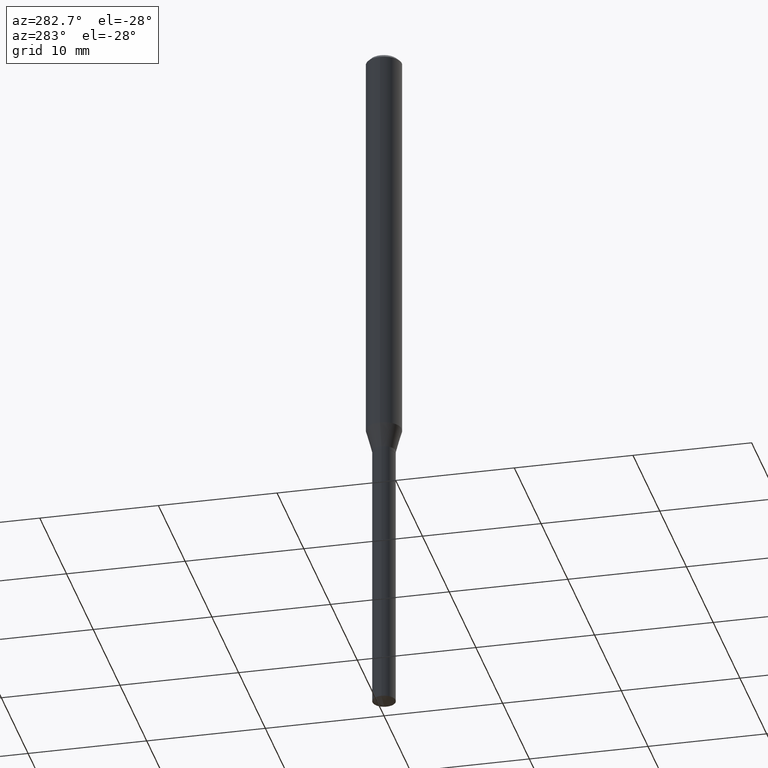
[diagram: clean part render]
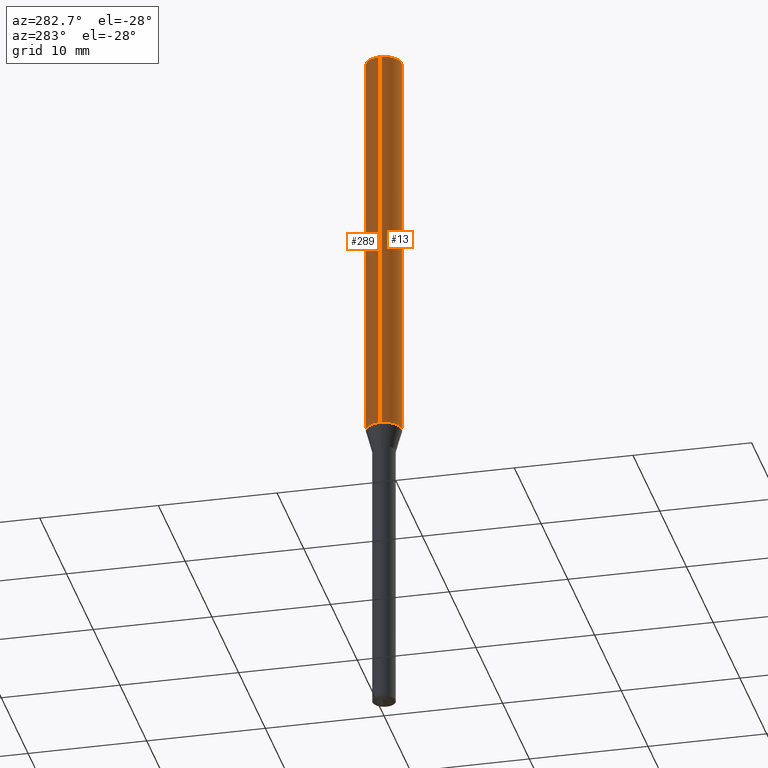
[diagram: same view with one multi-face feature highlighted, each face labeled with its STEP entity id]
A machine part, auxiliary view. The highlighted faces form ONE feature: a constant-radius fillet chain: 2 tangent blend faces with common blend radius 1.4999 mm. The faces share edges in the B-rep.
Their STEP definitions:
[1] entity #13 (Cylinder):
#10 = DIRECTION ( 'NONE',  ( -2.445468806185136877E-29, 3.491481338843145188E-15, 1.000000000000000000 ) ) ;
#13 = ADVANCED_FACE ( 'NONE', ( #306 ), #106, .T. ) ;
#17 = CARTESIAN_POINT ( 'NONE',  ( 0.05905000000000008159, -4.123439461173746736E-16, 2.879382386107504424E-30 ) ) ;
#19 = DIRECTION ( 'NONE',  ( 1.000000000000000000, -6.982962677686266711E-15, 0.000000000000000000 ) ) ;
#36 = VERTEX_POINT ( 'NONE', #38 ) ;
#38 = CARTESIAN_POINT ( 'NONE',  ( 0.05905000000000017180, -5.133291609849517626E-15, -1.352133150823702445 ) ) ;
#42 = AXIS2_PLACEMENT_3D ( 'NONE', #245, #407, #19 ) ;
#64 = VERTEX_POINT ( 'NONE', #430 ) ;
#78 = LINE ( 'NONE', #349, #490 ) ;
#90 = EDGE_CURVE ( 'NONE', #447, #187, #78, .T. ) ;
#106 = CYLINDRICAL_SURFACE ( 'NONE', #218, 0.05905000000000008159 ) ;
#111 = DIRECTION ( 'NONE',  ( -2.445468806185136877E-29, 3.491481338843145188E-15, 1.000000000000000000 ) ) ;
#187 = VERTEX_POINT ( 'NONE', #271 ) ;
#205 = CARTESIAN_POINT ( 'NONE',  ( -0.05905000000000017180, -4.301372178265801635E-15, -1.352133150823702445 ) ) ;
#211 = AXIS2_PLACEMENT_3D ( 'NONE', #301, #366, #226 ) ;
#215 = EDGE_CURVE ( 'NONE', #36, #64, #359, .T. ) ;
#218 = AXIS2_PLACEMENT_3D ( 'NONE', #228, #230, #465 ) ;
#226 = DIRECTION ( 'NONE',  ( 1.000000000000000000, -6.982962677686270655E-15, 0.000000000000000000 ) ) ;
#228 = CARTESIAN_POINT ( 'NONE',  ( 0.000000000000000000, 0.000000000000000000, 0.000000000000000000 ) ) ;
#230 = DIRECTION ( 'NONE',  ( -2.445468806185136597E-29, 3.491481338843145583E-15, 1.000000000000000000 ) ) ;
#235 = EDGE_LOOP ( 'NONE', ( #428, #453, #423, #420 ) ) ;
#245 = CARTESIAN_POINT ( 'NONE',  ( 2.888098660104663766E-31, -4.123439461173779647E-17, -0.01181000000000007044 ) ) ;
#255 = CIRCLE ( 'NONE', #42, 0.05904999999999999832 ) ;
#271 = CARTESIAN_POINT ( 'NONE',  ( -0.05904999999999999832, -1.961515543705598752E-15, -0.01181000000000007044 ) ) ;
#296 = EDGE_CURVE ( 'NONE', #447, #36, #459, .T. ) ;
#301 = CARTESIAN_POINT ( 'NONE',  ( 3.306599442148187304E-29, -4.720947663732141917E-15, -1.352133150823702445 ) ) ;
#306 = FACE_OUTER_BOUND ( 'NONE', #235, .T. ) ;
#349 = CARTESIAN_POINT ( 'NONE',  ( -0.05905000000000008159, 4.195754854663397395E-16, -2.904631170795525745E-30 ) ) ;
#359 = LINE ( 'NONE', #17, #472 ) ;
#366 = DIRECTION ( 'NONE',  ( -2.445468806185136597E-29, 3.491481338843145583E-15, 1.000000000000000000 ) ) ;
#407 = DIRECTION ( 'NONE',  ( -2.445468806185136597E-29, 3.491481338843145583E-15, 1.000000000000000000 ) ) ;
#420 = ORIENTED_EDGE ( 'NONE', *, *, #427, .F. ) ;
#423 = ORIENTED_EDGE ( 'NONE', *, *, #215, .T. ) ;
#427 = EDGE_CURVE ( 'NONE', #187, #64, #255, .T. ) ;
#428 = ORIENTED_EDGE ( 'NONE', *, *, #90, .F. ) ;
#430 = CARTESIAN_POINT ( 'NONE',  ( 0.05904999999999999832, -4.535783407291118600E-16, -0.01181000000000007044 ) ) ;
#447 = VERTEX_POINT ( 'NONE', #205 ) ;
#453 = ORIENTED_EDGE ( 'NONE', *, *, #296, .T. ) ;
#459 = CIRCLE ( 'NONE', #211, 0.05905000000000015792 ) ;
#465 = DIRECTION ( 'NONE',  ( 1.000000000000000000, -6.982962677686267499E-15, 4.876176775795936353E-29 ) ) ;
#472 = VECTOR ( 'NONE', #10, 39.37007874015748143 ) ;
#490 = VECTOR ( 'NONE', #111, 39.37007874015748143 ) ;
[2] entity #289 (Cylinder):
#10 = DIRECTION ( 'NONE',  ( -2.445468806185136877E-29, 3.491481338843145188E-15, 1.000000000000000000 ) ) ;
#17 = CARTESIAN_POINT ( 'NONE',  ( 0.05905000000000008159, -4.123439461173746736E-16, 2.879382386107504424E-30 ) ) ;
#26 = CYLINDRICAL_SURFACE ( 'NONE', #262, 0.05905000000000008159 ) ;
#36 = VERTEX_POINT ( 'NONE', #38 ) ;
#38 = CARTESIAN_POINT ( 'NONE',  ( 0.05905000000000017180, -5.133291609849517626E-15, -1.352133150823702445 ) ) ;
#64 = VERTEX_POINT ( 'NONE', #430 ) ;
#65 = AXIS2_PLACEMENT_3D ( 'NONE', #137, #450, #256 ) ;
#74 = CIRCLE ( 'NONE', #65, 0.05904999999999999832 ) ;
#78 = LINE ( 'NONE', #349, #490 ) ;
#90 = EDGE_CURVE ( 'NONE', #447, #187, #78, .T. ) ;
#92 = DIRECTION ( 'NONE',  ( 1.000000000000000000, -6.982962677686270655E-15, 0.000000000000000000 ) ) ;
#111 = DIRECTION ( 'NONE',  ( -2.445468806185136877E-29, 3.491481338843145188E-15, 1.000000000000000000 ) ) ;
#136 = ORIENTED_EDGE ( 'NONE', *, *, #373, .F. ) ;
#137 = CARTESIAN_POINT ( 'NONE',  ( 2.888098660104663766E-31, -4.123439461173779647E-17, -0.01181000000000007044 ) ) ;
#138 = ORIENTED_EDGE ( 'NONE', *, *, #90, .T. ) ;
#187 = VERTEX_POINT ( 'NONE', #271 ) ;
#195 = CIRCLE ( 'NONE', #286, 0.05905000000000015792 ) ;
#205 = CARTESIAN_POINT ( 'NONE',  ( -0.05905000000000017180, -4.301372178265801635E-15, -1.352133150823702445 ) ) ;
#215 = EDGE_CURVE ( 'NONE', #36, #64, #359, .T. ) ;
#222 = FACE_OUTER_BOUND ( 'NONE', #302, .T. ) ;
#250 = CARTESIAN_POINT ( 'NONE',  ( 3.306599442148187304E-29, -4.720947663732141917E-15, -1.352133150823702445 ) ) ;
#256 = DIRECTION ( 'NONE',  ( 1.000000000000000000, -6.982962677686266711E-15, 0.000000000000000000 ) ) ;
#261 = ORIENTED_EDGE ( 'NONE', *, *, #215, .F. ) ;
#262 = AXIS2_PLACEMENT_3D ( 'NONE', #487, #377, #293 ) ;
#271 = CARTESIAN_POINT ( 'NONE',  ( -0.05904999999999999832, -1.961515543705598752E-15, -0.01181000000000007044 ) ) ;
#286 = AXIS2_PLACEMENT_3D ( 'NONE', #250, #410, #92 ) ;
#287 = EDGE_CURVE ( 'NONE', #36, #447, #195, .T. ) ;
#289 = ADVANCED_FACE ( 'NONE', ( #222 ), #26, .T. ) ;
#293 = DIRECTION ( 'NONE',  ( 1.000000000000000000, -6.982962677686267499E-15, 4.876176775795936353E-29 ) ) ;
#295 = ORIENTED_EDGE ( 'NONE', *, *, #287, .T. ) ;
#302 = EDGE_LOOP ( 'NONE', ( #295, #138, #136, #261 ) ) ;
#349 = CARTESIAN_POINT ( 'NONE',  ( -0.05905000000000008159, 4.195754854663397395E-16, -2.904631170795525745E-30 ) ) ;
#359 = LINE ( 'NONE', #17, #472 ) ;
#373 = EDGE_CURVE ( 'NONE', #64, #187, #74, .T. ) ;
#377 = DIRECTION ( 'NONE',  ( -2.445468806185136597E-29, 3.491481338843145583E-15, 1.000000000000000000 ) ) ;
#410 = DIRECTION ( 'NONE',  ( -2.445468806185136597E-29, 3.491481338843145583E-15, 1.000000000000000000 ) ) ;
#430 = CARTESIAN_POINT ( 'NONE',  ( 0.05904999999999999832, -4.535783407291118600E-16, -0.01181000000000007044 ) ) ;
#447 = VERTEX_POINT ( 'NONE', #205 ) ;
#450 = DIRECTION ( 'NONE',  ( -2.445468806185136597E-29, 3.491481338843145583E-15, 1.000000000000000000 ) ) ;
#472 = VECTOR ( 'NONE', #10, 39.37007874015748143 ) ;
#487 = CARTESIAN_POINT ( 'NONE',  ( 0.000000000000000000, 0.000000000000000000, 0.000000000000000000 ) ) ;
#490 = VECTOR ( 'NONE', #111, 39.37007874015748143 ) ;